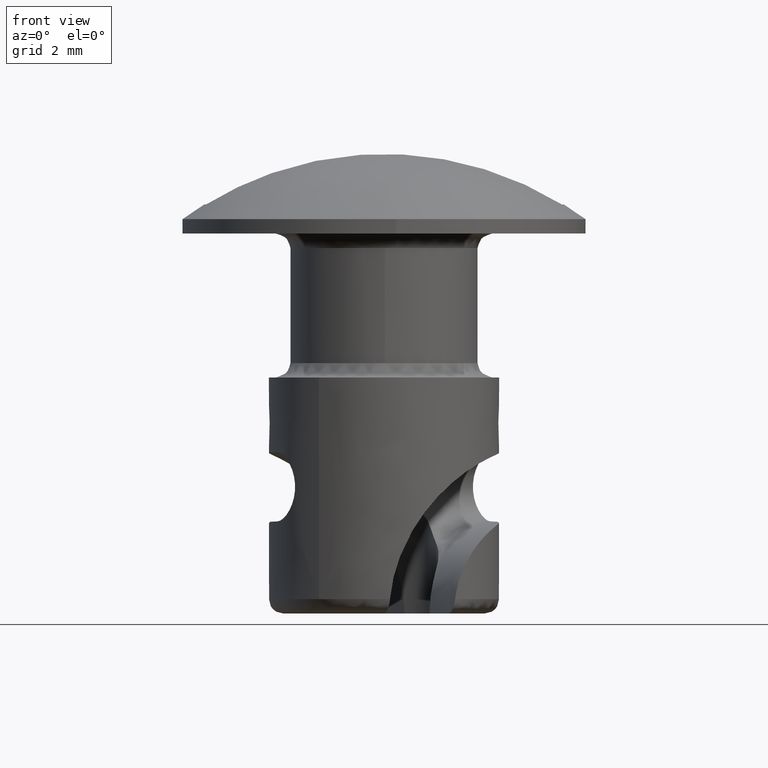
[diagram: clean part render]
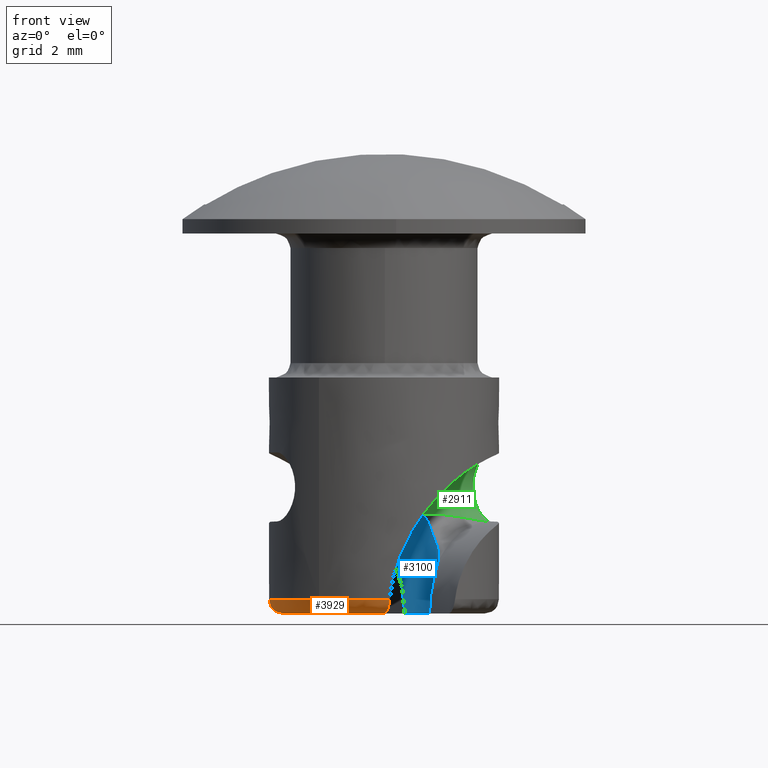
[diagram: same view with three faces highlighted in distinct colors, each labeled with its STEP entity id]
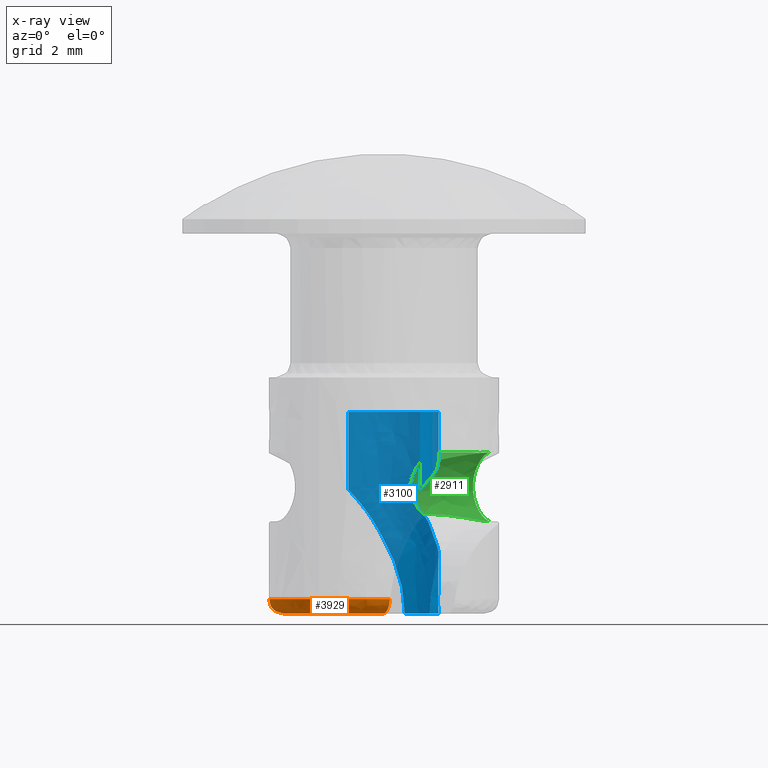
[diagram: x-ray of the same camera — body ghosted, the three highlighted faces saturated]
A machine part, front view with three faces highlighted in distinct colors.
The next image is the same camera in x-ray (body ghosted, the three faces saturated) — at least one of them is partly hidden behind the body in this view.
Their STEP definitions:

[orange] entity #3929 — the highlighted face is a freeform B-spline surface patch.
#3241=CARTESIAN_POINT('',(-2.259198863893974,-3.300912069925549,-12.699992000000160));
#3242=VERTEX_POINT('',#3241);
#3248=CARTESIAN_POINT('',(0.205768854712659,-3.994703891207740,-12.699992000000160));
#3249=VERTEX_POINT('',#3248);
#3250=CARTESIAN_POINT('',(-2.259198863893975,-3.300912069925549,-12.699992000000162));
#3251=CARTESIAN_POINT('',(-1.143920628626017,-4.064226956438076,-12.699992000000160));
#3252=CARTESIAN_POINT('',(0.205768854712658,-3.994703891207737,-12.699992000000160));
#3260=(BOUNDED_CURVE()B_SPLINE_CURVE(2,(#3250,#3251,#3252),.UNSPECIFIED.,.F.,.U.)B_SPLINE_CURVE_WITH_KNOTS((3,3),(0.742473773154059,1.0),.UNSPECIFIED.)CURVE()GEOMETRIC_REPRESENTATION_ITEM()RATIONAL_B_SPLINE_CURVE((0.903519857633981,0.900525177309878,1.0))REPRESENTATION_ITEM(''));
#3261=EDGE_CURVE('',#3242,#3249,#3260,.T.);
#3357=CARTESIAN_POINT('',(-2.468781606039290,3.147239644781135,-12.699992000000160));
#3358=VERTEX_POINT('',#3357);
#3402=CARTESIAN_POINT('',(-2.468781606039288,3.147239644781133,-12.699992000000160));
#3403=CARTESIAN_POINT('',(-4.772995447202776,1.339750737198706,-12.699992000000163));
#3404=CARTESIAN_POINT('',(-3.745950619800004,-1.402802179218427,-12.699992000000160));
#3405=CARTESIAN_POINT('',(-3.302552383284815,-2.586823649599729,-12.699992000000162));
#3406=CARTESIAN_POINT('',(-2.259198863893975,-3.300912069925549,-12.699992000000162));
#3414=(BOUNDED_CURVE()B_SPLINE_CURVE(2,(#3402,#3403,#3404,#3405,#3406),.UNSPECIFIED.,.F.,.U.)B_SPLINE_CURVE_WITH_KNOTS((3,2,3),(0.0,0.500000000000000,0.742473773154059),.UNSPECIFIED.)CURVE()GEOMETRIC_REPRESENTATION_ITEM()RATIONAL_B_SPLINE_CURVE((1.0,0.806864675671208,1.0,0.906339498361330,0.903519857633981))REPRESENTATION_ITEM(''));
#3415=EDGE_CURVE('',#3358,#3242,#3414,.T.);
#3789=CARTESIAN_POINT('',(-2.242511966324965,2.687217907221375,-13.199992000000099));
#3790=VERTEX_POINT('',#3789);
#3796=CARTESIAN_POINT('',(-2.468781606039290,3.147239644781135,-12.699992000000160));
#3797=CARTESIAN_POINT('',(-2.464572320773224,3.150541524273111,-12.733274123550190));
#3798=CARTESIAN_POINT('',(-2.459563125066523,3.150276408604843,-12.766187591314271));
#3799=CARTESIAN_POINT('',(-2.447905572098371,3.142738857981299,-12.831278994734751));
#3800=CARTESIAN_POINT('',(-2.441164767004548,3.135296757916409,-12.863783486413800));
#3801=CARTESIAN_POINT('',(-2.426427040251809,3.113930837520646,-12.925157461837310));
#3802=CARTESIAN_POINT('',(-2.418399638694785,3.100049556877732,-12.954308135837170));
#3803=CARTESIAN_POINT('',(-2.400786041455194,3.065982162877449,-13.009512428120059));
#3804=CARTESIAN_POINT('',(-2.391400104514494,3.046173255314444,-13.034889387884061));
#3805=CARTESIAN_POINT('',(-2.371574630902612,3.002094869464855,-13.080668314815309));
#3806=CARTESIAN_POINT('',(-2.360969432059829,2.977440976156993,-13.101381239037501));
#3807=CARTESIAN_POINT('',(-2.339057009752661,2.925254256444605,-13.136821845581650));
#3808=CARTESIAN_POINT('',(-2.327740431831670,2.897720641032076,-13.151663792608220));
#3809=CARTESIAN_POINT('',(-2.304196367126951,2.839942682373601,-13.175755940135289));
#3810=CARTESIAN_POINT('',(-2.292001899115876,2.809776261967374,-13.184892974169580));
#3811=CARTESIAN_POINT('',(-2.267516184016631,2.749146349777264,-13.196946027397439));
#3812=CARTESIAN_POINT('',(-2.255109725855921,2.718398469727004,-13.199992000000149));
#3813=CARTESIAN_POINT('',(-2.242511966324608,2.687217907221529,-13.199992000000160));
#3814=B_SPLINE_CURVE_WITH_KNOTS('',3,(#3796,#3797,#3798,#3799,#3800,#3801,#3802,#3803,#3804,#3805,#3806,#3807,#3808,#3809,#3810,#3811,#3812,#3813),.UNSPECIFIED.,.F.,.U.,(4,2,2,2,2,2,2,2,4),(0.0,0.125000000000000,0.250000000000000,0.375000000000000,0.500000000000000,0.625000000000000,0.750000000000000,0.875000000000000,1.0),.UNSPECIFIED.);
#3815=EDGE_CURVE('',#3358,#3790,#3814,.T.);
#3844=CARTESIAN_POINT('',(-0.017604006614064,-3.499955728141590,-13.199992000000099));
#3845=VERTEX_POINT('',#3844);
#3846=CARTESIAN_POINT('',(0.205768854712687,-3.994703891207736,-12.699992000000160));
#3847=CARTESIAN_POINT('',(0.202570867799463,-3.994868620840380,-12.734214420369421));
#3848=CARTESIAN_POINT('',(0.198393545772965,-3.991599343327962,-12.767742906660960));
#3849=CARTESIAN_POINT('',(0.188146193195389,-3.978574490013460,-12.833482946978870));
#3850=CARTESIAN_POINT('',(0.181987101593155,-3.968640287744275,-12.866043282467761));
#3851=CARTESIAN_POINT('',(0.168073989641811,-3.942908178400838,-12.927523380525150));
#3852=CARTESIAN_POINT('',(0.160334601070042,-3.927184040059275,-12.956536318944631));
#3853=CARTESIAN_POINT('',(0.147461496767844,-3.899415845364495,-12.997497215102010));
#3854=CARTESIAN_POINT('',(0.142933257884454,-3.889400476937639,-13.010782385685040));
#3855=CARTESIAN_POINT('',(0.133598651144906,-3.868340091526420,-13.035992227197690));
#3856=CARTESIAN_POINT('',(0.128782856804895,-3.857277266277472,-13.047958802780990));
#3857=CARTESIAN_POINT('',(0.113874842880179,-3.822554900096510,-13.082005095103829));
#3858=CARTESIAN_POINT('',(0.103303531045872,-3.797320421873493,-13.102282336880119));
#3859=CARTESIAN_POINT('',(0.080860798330045,-3.743011684126071,-13.137705294688450));
#3860=CARTESIAN_POINT('',(0.069289267673411,-3.714668037223074,-13.152391193458779));
#3861=CARTESIAN_POINT('',(0.045370677399293,-3.655796365253236,-13.176083282238160));
#3862=CARTESIAN_POINT('',(0.032901293881655,-3.624963587258385,-13.185131230430841));
#3863=CARTESIAN_POINT('',(0.007754761183584,-3.562736604437254,-13.197057158079890));
#3864=CARTESIAN_POINT('',(-0.004885637460380,-3.531434810067574,-13.199992000000240));
#3865=CARTESIAN_POINT('',(-0.017604006614226,-3.499955728141666,-13.199992000000240));
#3866=B_SPLINE_CURVE_WITH_KNOTS('',3,(#3846,#3847,#3848,#3849,#3850,#3851,#3852,#3853,#3854,#3855,#3856,#3857,#3858,#3859,#3860,#3861,#3862,#3863,#3864,#3865),.UNSPECIFIED.,.F.,.U.,(4,2,2,2,2,2,2,2,2,4),(0.0,0.124999999999999,0.249999999999997,0.374999999999995,0.437499999999995,0.499999999999994,0.624999999999995,0.749999999999997,0.874999999999998,1.0),.UNSPECIFIED.);
#3867=EDGE_CURVE('',#3249,#3845,#3866,.T.);
#3877=CARTESIAN_POINT('',(-1.787654974981890,2.968630140595364,-13.198788173820232));
#3878=CARTESIAN_POINT('',(-4.255079476371656,1.482792068353392,-13.198788173820233));
#3879=CARTESIAN_POINT('',(-3.245449447871267,-1.214715235164538,-13.198788173820239));
#3880=CARTESIAN_POINT('',(-2.238908710264100,-3.903968639222344,-13.198788173820235));
#3881=CARTESIAN_POINT('',(0.590536827128366,-3.414636360878552,-13.198788173820239));
#3882=CARTESIAN_POINT('',(-2.083529261829931,3.459967304677125,-13.238659866102074));
#3883=CARTESIAN_POINT('',(-4.959336518794486,1.728208578758281,-13.238659866102072));
#3884=CARTESIAN_POINT('',(-3.782602899923730,-1.415762422098023,-13.238659866102072));
#3885=CARTESIAN_POINT('',(-2.609469879638505,-4.550113422848018,-13.238659866102070));
#3886=CARTESIAN_POINT('',(0.688276416159454,-3.979791892711851,-13.238659866102076));
#3887=CARTESIAN_POINT('',(-2.062849871924862,3.425626528061695,-12.665129894639572));
#3888=CARTESIAN_POINT('',(-4.910114242236424,1.711055808364243,-12.665129894639584));
#3889=CARTESIAN_POINT('',(-3.745059908972467,-1.401710734091588,-12.665129894639582));
#3890=CARTESIAN_POINT('',(-2.583570437727530,-4.504952756613490,-12.665129894639582));
#3891=CARTESIAN_POINT('',(0.681445153151549,-3.940291766748586,-12.665129894639588));
#3899=(BOUNDED_SURFACE()B_SPLINE_SURFACE(2,2,((#3877,#3882,#3887),(#3878,#3883,#3888),(#3879,#3884,#3889),(#3880,#3885,#3890),(#3881,#3886,#3891)),.UNSPECIFIED.,.F.,.F.,.U.)B_SPLINE_SURFACE_WITH_KNOTS((3,2,3),(3,3),(0.0,5.779211875193943,11.544980126547729),(0.0,0.911185203767678),.UNSPECIFIED.)GEOMETRIC_REPRESENTATION_ITEM()RATIONAL_B_SPLINE_SURFACE(((0.896672613332314,0.586786817893471,0.891705799261927),(0.698072375441069,0.456821878748061,0.694205640085337),(0.918901012098444,0.601333187644155,0.913811071346020),(0.698586067824818,0.457158041484331,0.694716487044210),(0.895750913753511,0.586183653310480,0.890789205125589)))REPRESENTATION_ITEM('')SURFACE());
#3900=ORIENTED_EDGE('',*,*,#3261,.F.);
#3901=ORIENTED_EDGE('',*,*,#3415,.F.);
#3902=ORIENTED_EDGE('',*,*,#3815,.T.);
#3903=CARTESIAN_POINT('',(-0.017604006614064,-3.499955728141590,-13.199992000000099));
#3904=CARTESIAN_POINT('',(-0.178913117588467,-3.499152014091810,-13.199992000000121));
#3905=CARTESIAN_POINT('',(-0.473613505648174,-3.477243167516102,-13.199992000000080));
#3906=CARTESIAN_POINT('',(-0.899487754520686,-3.390687299042207,-13.199992000000170));
#3907=CARTESIAN_POINT('',(-1.375973692201717,-3.234225269786171,-13.199992000000110));
#3908=CARTESIAN_POINT('',(-1.848238909772020,-2.991562357882731,-13.199992000000289));
#3909=CARTESIAN_POINT('',(-2.272609191030276,-2.674547442589935,-13.199991999999940));
#3910=CARTESIAN_POINT('',(-2.596563652122130,-2.360253370815428,-13.199992000000551));
#3911=CARTESIAN_POINT('',(-2.889726462323719,-1.995173216680278,-13.199992000000030));
#3912=CARTESIAN_POINT('',(-3.174608717146924,-1.515529242652979,-13.199992000000311));
#3913=CARTESIAN_POINT('',(-3.378418700342132,-0.977145196271774,-13.199992000000160));
#3914=CARTESIAN_POINT('',(-3.485157798861656,-0.429783230212972,-13.199992000000210));
#3915=CARTESIAN_POINT('',(-3.512980136589142,0.104770700120767,-13.199992000000201));
#3916=CARTESIAN_POINT('',(-3.449576458452507,0.704519837792065,-13.199992000000179));
#3917=CARTESIAN_POINT('',(-3.282890106652137,1.255678343634452,-13.199992000000289));
#3918=CARTESIAN_POINT('',(-3.071565312153197,1.691921684577548,-13.199991999999961));
#3919=CARTESIAN_POINT('',(-2.862091953610124,2.027312342676228,-13.199992000001521));
#3920=CARTESIAN_POINT('',(-2.595490601400062,2.363584446783458,-13.199991999996710));
#3921=CARTESIAN_POINT('',(-2.370636645542784,2.580305548922044,-13.199992000005301));
#3922=CARTESIAN_POINT('',(-2.242511966324965,2.687217907221375,-13.199992000000099));
#3923=B_SPLINE_CURVE_WITH_KNOTS('',3,(#3903,#3904,#3905,#3906,#3907,#3908,#3909,#3910,#3911,#3912,#3913,#3914,#3915,#3916,#3917,#3918,#3919,#3920,#3921,#3922),.UNSPECIFIED.,.F.,.U.,(4,1,1,1,1,1,1,1,1,1,1,1,1,1,1,1,1,4),(0.000000019222266,0.483932841108919,0.884427038703802,1.301615805167814,1.985803696796976,2.469739860755069,2.886928251809494,3.337490295953399,3.871489149374721,4.555660668383432,5.056286265835503,5.540223648594800,6.157660975781184,6.858536151160585,7.259034435060539,7.609472553309746,8.043349244696652,8.543963902825499),.UNSPECIFIED.);
#3924=EDGE_CURVE('',#3845,#3790,#3923,.T.);
#3925=ORIENTED_EDGE('',*,*,#3924,.F.);
#3926=ORIENTED_EDGE('',*,*,#3867,.F.);
#3927=EDGE_LOOP('',(#3900,#3901,#3902,#3925,#3926));
#3928=FACE_OUTER_BOUND('',#3927,.T.);
#3929=ADVANCED_FACE('',(#3928),#3899,.T.);

[blue] entity #3100 — the highlighted face is a freeform B-spline surface patch.
#969=CARTESIAN_POINT('',(1.581969614668675,-1.052317508295498,-13.199992000000099));
#970=VERTEX_POINT('',#969);
#971=CARTESIAN_POINT('',(0.721534682210653,1.757665412519450,-13.199992000000099));
#972=VERTEX_POINT('',#971);
#973=CARTESIAN_POINT('',(1.581969614668675,-1.052317508295498,-13.199992000000099));
#974=CARTESIAN_POINT('',(1.649821487017520,-0.950340257211823,-13.199992000000121));
#975=CARTESIAN_POINT('',(1.736720389148278,-0.787484526766799,-13.199992000000091));
#976=CARTESIAN_POINT('',(1.833059382185117,-0.519599167208110,-13.199992000000091));
#977=CARTESIAN_POINT('',(1.883237041559169,-0.292491522237659,-13.199992000000160));
#978=CARTESIAN_POINT('',(1.904602887322167,-0.034878904664627,-13.199991999999961));
#979=CARTESIAN_POINT('',(1.895489160062544,0.184183799772227,-13.199992000000391));
#980=CARTESIAN_POINT('',(1.856656973327136,0.426351362154605,-13.199992000000041));
#981=CARTESIAN_POINT('',(1.779402381627026,0.691728355395661,-13.199992000000281));
#982=CARTESIAN_POINT('',(1.650682556490641,0.956462725797221,-13.199992000000030));
#983=CARTESIAN_POINT('',(1.475426748592669,1.208299081310732,-13.199991999999840));
#984=CARTESIAN_POINT('',(1.291590155930281,1.403094404216269,-13.199992000000380));
#985=CARTESIAN_POINT('',(1.036517514935681,1.603441929533996,-13.199991999999920));
#986=CARTESIAN_POINT('',(0.846997086253565,1.706186883979090,-13.199992000000289));
#987=CARTESIAN_POINT('',(0.721534682210653,1.757665412519450,-13.199992000000099));
#988=B_SPLINE_CURVE_WITH_KNOTS('',3,(#973,#974,#975,#976,#977,#978,#979,#980,#981,#982,#983,#984,#985,#986,#987),.UNSPECIFIED.,.F.,.U.,(4,1,1,1,1,1,1,1,1,1,1,1,4),(0.000000015421960,0.367460081629099,0.551196109395039,0.853043133707279,1.063025020080209,1.325501699289623,1.509236120133757,1.797949140847621,2.152290925311263,2.388520108167433,2.716615470771077,2.952845246573053,3.359676945685905),.UNSPECIFIED.);
#989=EDGE_CURVE('',#970,#972,#988,.T.);
#1188=CARTESIAN_POINT('',(-0.041622970775813,1.899544031683340,-10.566299029696300));
#1189=VERTEX_POINT('',#1188);
#1219=CARTESIAN_POINT('',(-1.243232143664261,1.436828654410550,-8.889222069359681));
#1220=VERTEX_POINT('',#1219);
#1221=CARTESIAN_POINT('',(-1.243232143664261,1.436828654410550,-8.889222069359681));
#1222=CARTESIAN_POINT('',(-1.220302309335358,1.456615922262639,-8.913999902160473));
#1223=CARTESIAN_POINT('',(-1.157578860147537,1.508270977338468,-8.982429918408119));
#1224=CARTESIAN_POINT('',(-1.022330653960302,1.605926719664628,-9.131531823037186));
#1225=CARTESIAN_POINT('',(-0.818661554658760,1.721626721108192,-9.364524347904663));
#1226=CARTESIAN_POINT('',(-0.653583255729922,1.786336803246604,-9.574185267280782));
#1227=CARTESIAN_POINT('',(-0.516227213071408,1.829315322870221,-9.766701908673825));
#1228=CARTESIAN_POINT('',(-0.460649452398973,1.844096098378146,-9.849351244469471));
#1229=CARTESIAN_POINT('',(-0.410071782682771,1.855371314884293,-9.929006918932762));
#1230=CARTESIAN_POINT('',(-0.401224346707899,1.857254255614388,-9.943127798757612));
#1231=CARTESIAN_POINT('',(-0.389384014804396,1.859824149858307,-9.961919996842756));
#1232=CARTESIAN_POINT('',(-0.357186746597158,1.866401031663069,-10.013890983177671));
#1233=CARTESIAN_POINT('',(-0.322827555675098,1.872554971579964,-10.071181188741120));
#1234=CARTESIAN_POINT('',(-0.272366637800077,1.880553742606249,-10.157863819252320));
#1235=CARTESIAN_POINT('',(-0.183796699962217,1.892529585298427,-10.312827592876740));
#1236=CARTESIAN_POINT('',(-0.102429527085996,1.898136271301483,-10.459415384826160));
#1237=CARTESIAN_POINT('',(-0.041622970775813,1.899544031683340,-10.566299029696300));
#1238=B_SPLINE_CURVE_WITH_KNOTS('',3,(#1221,#1222,#1223,#1224,#1225,#1226,#1227,#1228,#1229,#1230,#1231,#1232,#1233,#1234,#1235,#1236,#1237),.UNSPECIFIED.,.F.,.U.,(4,1,1,1,1,1,1,1,1,1,1,1,1,1,4),(0.000002171706131,0.117394088925922,0.318630204633076,0.670795114102035,1.106806495608427,1.140352888952157,1.391897581498733,1.408666901236069,1.425436599582296,1.442206297928520,1.475745321496111,1.609899315664720,1.643441117069296,1.777601563671880,2.146537870647717),.UNSPECIFIED.);
#1239=EDGE_CURVE('',#1220,#1189,#1238,.T.);
#1431=CARTESIAN_POINT('',(1.880153510973110,-0.273902857187526,-11.368191261108080));
#1432=VERTEX_POINT('',#1431);
#1452=CARTESIAN_POINT('',(1.644551993322515,0.951548828387879,-10.300820635221060));
#1453=VERTEX_POINT('',#1452);
#1474=CARTESIAN_POINT('',(1.880153510973110,-0.273902857187526,-11.368191261108080));
#1475=CARTESIAN_POINT('',(1.888275491328264,-0.218161016340704,-11.327104216464861));
#1476=CARTESIAN_POINT('',(1.901858087535319,-0.083547624572705,-11.231425826189369));
#1477=CARTESIAN_POINT('',(1.900228420577379,0.147491132232721,-11.074574192030850));
#1478=CARTESIAN_POINT('',(1.874371224330313,0.325530635638813,-10.950940229147429));
#1479=CARTESIAN_POINT('',(1.846339444129771,0.449498002891596,-10.858970085542740));
#1480=CARTESIAN_POINT('',(1.835864108843190,0.490186815494689,-10.827812564034760));
#1481=CARTESIAN_POINT('',(1.825394138791549,0.526730697413815,-10.798614425172669));
#1482=CARTESIAN_POINT('',(1.821437679275448,0.539870724541558,-10.787868661159131));
#1483=CARTESIAN_POINT('',(1.818505916308642,0.549765398277564,-10.779840985587310));
#1484=CARTESIAN_POINT('',(1.797396146222874,0.618357707011873,-10.723105345406040));
#1485=CARTESIAN_POINT('',(1.755988529911351,0.730176566630629,-10.620619650495209));
#1486=CARTESIAN_POINT('',(1.695217158816990,0.860390887188224,-10.461972853994970));
#1487=CARTESIAN_POINT('',(1.659884475515199,0.925067414285360,-10.353601248712740));
#1488=CARTESIAN_POINT('',(1.644551993322515,0.951548828387879,-10.300820635221060));
#1489=B_SPLINE_CURVE_WITH_KNOTS('',3,(#1474,#1475,#1476,#1477,#1478,#1479,#1480,#1481,#1482,#1483,#1484,#1485,#1486,#1487,#1488),.UNSPECIFIED.,.F.,.U.,(4,1,1,1,1,1,1,1,1,1,1,1,4),(-0.000002688396127,0.209166340722556,0.496760280912023,0.836644791219631,0.862810010231854,0.967390627394452,0.993534625315831,1.006606835661043,1.019679046006255,1.032750840539499,1.281128758611554,1.490291219146094,1.673311808194010),.UNSPECIFIED.);
#1490=EDGE_CURVE('',#1432,#1453,#1489,.T.);
#1719=CARTESIAN_POINT('',(1.337555540859292,1.349424016061876,-9.736663782010471));
#1720=VERTEX_POINT('',#1719);
#1721=CARTESIAN_POINT('',(1.644551993322515,0.951548828387879,-10.300820635221060));
#1722=CARTESIAN_POINT('',(1.623676626864627,0.987549674998427,-10.229304855974110));
#1723=CARTESIAN_POINT('',(1.574094456477796,1.067215672989429,-10.089273930300291));
#1724=CARTESIAN_POINT('',(1.475572835843046,1.203409252643479,-9.897146002075481));
#1725=CARTESIAN_POINT('',(1.383590640471163,1.300721393832098,-9.790191964746530));
#1726=CARTESIAN_POINT('',(1.337555540859292,1.349424016061876,-9.736663782010471));
#1727=B_SPLINE_CURVE_WITH_KNOTS('',3,(#1721,#1722,#1723,#1724,#1725,#1726),.UNSPECIFIED.,.F.,.U.,(4,1,1,4),(0.508240037875266,0.668572443504824,0.834127675299670,1.0),.UNSPECIFIED.);
#1728=EDGE_CURVE('',#1453,#1720,#1727,.T.);
#1770=CARTESIAN_POINT('',(0.721534682210653,1.757665412519450,-13.199992000000099));
#1771=CARTESIAN_POINT('',(0.721893078104262,1.757518288348255,-12.965842787339909));
#1772=CARTESIAN_POINT('',(0.703208962487021,1.765489430723738,-12.735152465420180));
#1773=CARTESIAN_POINT('',(0.631763697135257,1.792297521591014,-12.279764361704590));
#1774=CARTESIAN_POINT('',(0.579070358472820,1.810971929699325,-12.055047065619631));
#1775=CARTESIAN_POINT('',(0.477514230202834,1.839351954496197,-11.721563814118729));
#1776=CARTESIAN_POINT('',(0.440060506308491,1.848799836685293,-11.611568579517700));
#1777=CARTESIAN_POINT('',(0.359109351089647,1.866213963965553,-11.395070518409961));
#1778=CARTESIAN_POINT('',(0.315540545807093,1.874201365426794,-11.288332696225490));
#1779=CARTESIAN_POINT('',(0.176354874722204,1.894118616936462,-10.972221033753900));
#1780=CARTESIAN_POINT('',(0.072309615124799,1.902040532219394,-10.766924644487711));
#1781=CARTESIAN_POINT('',(-0.041622970775834,1.899544031683339,-10.566299029696349));
#1782=B_SPLINE_CURVE_WITH_KNOTS('',3,(#1770,#1771,#1772,#1773,#1774,#1775,#1776,#1777,#1778,#1779,#1780,#1781),.UNSPECIFIED.,.F.,.U.,(4,2,2,2,2,4),(0.0,0.250000000000000,0.500000000000000,0.625000000000000,0.750000000000000,1.0),.UNSPECIFIED.);
#1783=EDGE_CURVE('',#972,#1189,#1782,.T.);
#2180=CARTESIAN_POINT('',(1.581969614668675,-1.052317508295498,-13.199992000000099));
#2181=CARTESIAN_POINT('',(1.581541494893709,-1.052961109176487,-13.024284104693180));
#2182=CARTESIAN_POINT('',(1.590871754706836,-1.039349024441612,-12.851777405140410));
#2183=CARTESIAN_POINT('',(1.617575882351367,-0.996859116659941,-12.597744450303880));
#2184=CARTESIAN_POINT('',(1.628589111568765,-0.978954749811395,-12.513863986403690));
#2185=CARTESIAN_POINT('',(1.647920629736979,-0.945791373513118,-12.389315714368809));
#2186=CARTESIAN_POINT('',(1.654831971246443,-0.933681271810882,-12.348012305365019));
#2187=CARTESIAN_POINT('',(1.669511879085200,-0.907171238511878,-12.265851839527560));
#2188=CARTESIAN_POINT('',(1.677300814017527,-0.892729911218594,-12.224906293725621));
#2189=CARTESIAN_POINT('',(1.717598924446173,-0.815309374504596,-12.023984381038940));
#2190=CARTESIAN_POINT('',(1.754699236423869,-0.736519562836828,-11.873442960477700));
#2191=CARTESIAN_POINT('',(1.799417823110245,-0.610581610163464,-11.699657176556849));
#2192=CARTESIAN_POINT('',(1.808289815705217,-0.583894057302618,-11.665518619618931));
#2193=CARTESIAN_POINT('',(1.825299334353555,-0.528324396318213,-11.599753747349091));
#2194=CARTESIAN_POINT('',(1.833461095422938,-0.499386461394715,-11.568031848254400));
#2195=CARTESIAN_POINT('',(1.856494997979872,-0.409013480818551,-11.476355801615160));
#2196=CARTESIAN_POINT('',(1.869936403125859,-0.344036229976079,-11.419877897251560));
#2197=CARTESIAN_POINT('',(1.880153510973110,-0.273902857187526,-11.368191261108080));
#2198=B_SPLINE_CURVE_WITH_KNOTS('',3,(#2180,#2181,#2182,#2183,#2184,#2185,#2186,#2187,#2188,#2189,#2190,#2191,#2192,#2193,#2194,#2195,#2196,#2197),.UNSPECIFIED.,.F.,.U.,(4,2,2,2,2,2,2,2,4),(0.0,0.250000000000000,0.375000000000001,0.437500000000001,0.500000000000002,0.750000000000004,0.812500000000003,0.875000000000003,1.0),.UNSPECIFIED.);
#2199=EDGE_CURVE('',#970,#1432,#2198,.T.);
#2807=CARTESIAN_POINT('',(1.898898489012795,-0.064687931060836,-7.880723263633869));
#2808=VERTEX_POINT('',#2807);
#2858=CARTESIAN_POINT('',(1.898898489012795,-0.064687931060836,-7.880723263633869));
#2859=CARTESIAN_POINT('',(1.900004434566846,-0.032223168208356,-7.855814857792319));
#2860=CARTESIAN_POINT('',(1.900307525130212,0.001420064449195,-7.832209167235503));
#2861=CARTESIAN_POINT('',(1.899024273410543,0.069839212817061,-7.788383787700798));
#2862=CARTESIAN_POINT('',(1.897445710660937,0.104774071133012,-7.768038505826906));
#2863=CARTESIAN_POINT('',(1.889519916180226,0.211721066283880,-7.711702487952000));
#2864=CARTESIAN_POINT('',(1.880004050891795,0.285932662725563,-7.680316131452150));
#2865=CARTESIAN_POINT('',(1.849979044707093,0.440170709073584,-7.631505610466269));
#2866=CARTESIAN_POINT('',(1.830081540346517,0.516978677039264,-7.615103575248327));
#2867=CARTESIAN_POINT('',(1.792414891669961,0.631557760877167,-7.602397475486140));
#2868=CARTESIAN_POINT('',(1.778552246321431,0.669646414939584,-7.600160081321352));
#2869=CARTESIAN_POINT('',(1.748072645336852,0.745598042219239,-7.599856437709001));
#2870=CARTESIAN_POINT('',(1.731449398335777,0.783408034617138,-7.601830724837326));
#2871=CARTESIAN_POINT('',(1.678934211015392,0.893174443149749,-7.613855046412732));
#2872=CARTESIAN_POINT('',(1.639964300695713,0.962643626484022,-7.629904687576739));
#2873=CARTESIAN_POINT('',(1.576196701362401,1.061671028804812,-7.665775718559410));
#2874=CARTESIAN_POINT('',(1.554199597577966,1.093565598170043,-7.679647057802229));
#2875=CARTESIAN_POINT('',(1.509582912549231,1.154374955009347,-7.710626758006742));
#2876=CARTESIAN_POINT('',(1.486863992993069,1.183444544136801,-7.727789859512523));
#2877=CARTESIAN_POINT('',(1.417759685271590,1.266956812859566,-7.784157778267172));
#2878=CARTESIAN_POINT('',(1.370054835867638,1.318009212875630,-7.828637714752493));
#2879=CARTESIAN_POINT('',(1.277079405756306,1.408285031485548,-7.927381280004230));
#2880=CARTESIAN_POINT('',(1.231465652324459,1.447972250348972,-7.981824717035404));
#2881=CARTESIAN_POINT('',(1.165952699161776,1.500445642462858,-8.071589858700984));
#2882=CARTESIAN_POINT('',(1.144656797466388,1.516703877306248,-8.102833781568483));
#2883=CARTESIAN_POINT('',(1.104197080727084,1.546408303889387,-8.166955040563995));
#2884=CARTESIAN_POINT('',(1.084926519820730,1.559940644052517,-8.199973098926320));
#2885=CARTESIAN_POINT('',(1.030517038918047,1.596858195947257,-8.302070112980717));
#2886=CARTESIAN_POINT('',(0.998658256544104,1.616645361553468,-8.374279232648574));
#2887=CARTESIAN_POINT('',(0.948273958760659,1.646704902991735,-8.528166796720411));
#2888=CARTESIAN_POINT('',(0.930725992368718,1.656455381522674,-8.607059741355874));
#2889=CARTESIAN_POINT('',(0.917922953154685,1.663562826603600,-8.728655649138480));
#2890=CARTESIAN_POINT('',(0.915931761818000,1.664652889602962,-8.770050240261226));
#2891=CARTESIAN_POINT('',(0.916781335434117,1.664185151409286,-8.851976497690895));
#2892=CARTESIAN_POINT('',(0.922362689175799,1.661124632240418,-8.933155717420760));
#2893=CARTESIAN_POINT('',(0.936891421984984,1.652982582317226,-9.012910151238549));
#2894=CARTESIAN_POINT('',(0.955647188106692,1.642210524231475,-9.091975818611791));
#2895=CARTESIAN_POINT('',(0.967161122951699,1.635492040393048,-9.131128830040163));
#2896=CARTESIAN_POINT('',(1.006544092208594,1.611771819487000,-9.244828638970688));
#2897=CARTESIAN_POINT('',(1.039464609995571,1.591102909431730,-9.316770448007626));
#2898=CARTESIAN_POINT('',(1.114876544025198,1.539202857135218,-9.453509132139269));
#2899=CARTESIAN_POINT('',(1.156419260311849,1.508610169986961,-9.516660983504890));
#2900=CARTESIAN_POINT('',(1.222298539486650,1.454918835548117,-9.604625988691240));
#2901=CARTESIAN_POINT('',(1.244865591600100,1.435711543245992,-9.632806043189770));
#2902=CARTESIAN_POINT('',(1.290968442290883,1.394402545022413,-9.686903543954015));
#2903=CARTESIAN_POINT('',(1.314278454866608,1.372496375064674,-9.712549172863614));
#2904=CARTESIAN_POINT('',(1.337555540859292,1.349424016061876,-9.736663782010471));
#2905=B_SPLINE_CURVE_WITH_KNOTS('',3,(#2858,#2859,#2860,#2861,#2862,#2863,#2864,#2865,#2866,#2867,#2868,#2869,#2870,#2871,#2872,#2873,#2874,#2875,#2876,#2877,#2878,#2879,#2880,#2881,#2882,#2883,#2884,#2885,#2886,#2887,#2888,#2889,#2890,#2891,#2892,#2893,#2894,#2895,#2896,#2897,#2898,#2899,#2900,#2901,#2902,#2903,#2904),.UNSPECIFIED.,.F.,.U.,(4,2,2,2,2,2,2,2,2,2,2,2,2,2,2,2,2,1,2,2,2,2,2,4),(0.0,0.031250000000000,0.062500000000001,0.125000000000002,0.187500000000002,0.218750000000003,0.250000000000003,0.312500000000004,0.343750000000004,0.375000000000005,0.437500000000005,0.500000000000005,0.531250000000005,0.562500000000005,0.625000000000004,0.687500000000003,0.718750000000003,0.750000000000003,0.781250000000002,0.812500000000002,0.875000000000001,0.937500000000001,0.968750000000000,1.0),.UNSPECIFIED.);
#2906=EDGE_CURVE('',#2808,#1720,#2905,.T.);
#2976=CARTESIAN_POINT('',(-1.243214053714081,1.436808552538400,-6.199991999846281));
#2977=VERTEX_POINT('',#2976);
#2993=CARTESIAN_POINT('',(1.900000000000000,0.0,-6.199992000000099));
#2994=VERTEX_POINT('',#2993);
#2995=CARTESIAN_POINT('',(1.900000000000000,0.0,-6.199992000000099));
#2996=CARTESIAN_POINT('',(1.900000000000012,1.899999999999986,-6.199991999964944));
#2997=CARTESIAN_POINT('',(3.882533E-014,1.899999999999954,-6.199991999888034));
#2998=CARTESIAN_POINT('',(-0.707893984585879,1.899999999999942,-6.199991999859379));
#2999=CARTESIAN_POINT('',(-1.243214053714081,1.436808552538399,-6.199991999846281));
#3007=(BOUNDED_CURVE()B_SPLINE_CURVE(2,(#2995,#2996,#2997,#2998,#2999),.UNSPECIFIED.,.F.,.U.)B_SPLINE_CURVE_WITH_KNOTS((3,2,3),(0.500000000000000,0.750000000000000,0.864114589302798),.UNSPECIFIED.)CURVE()GEOMETRIC_REPRESENTATION_ITEM()RATIONAL_B_SPLINE_CURVE((1.0,0.707106781186547,1.0,0.866306442502113,0.854663968254637))REPRESENTATION_ITEM(''));
#3008=EDGE_CURVE('',#2994,#2977,#3007,.T.);
#3010=CARTESIAN_POINT('',(1.243214053713756,-1.436808552538681,-6.199991999846350));
#3011=VERTEX_POINT('',#3010);
#3012=CARTESIAN_POINT('',(1.243214053713756,-1.436808552538681,-6.199991999846350));
#3013=CARTESIAN_POINT('',(1.899999999999974,-0.868517448437215,-6.199991999923226));
#3014=CARTESIAN_POINT('',(1.900000000000000,0.0,-6.199992000000099));
#3022=(BOUNDED_CURVE()B_SPLINE_CURVE(2,(#3012,#3013,#3014),.UNSPECIFIED.,.F.,.U.)B_SPLINE_CURVE_WITH_KNOTS((3,3),(0.364114589302764,0.500000000000000),.UNSPECIFIED.)CURVE()GEOMETRIC_REPRESENTATION_ITEM()RATIONAL_B_SPLINE_CURVE((0.854663968254644,0.840800338684394,1.0))REPRESENTATION_ITEM(''));
#3023=EDGE_CURVE('',#3011,#2994,#3022,.T.);
#3043=CARTESIAN_POINT('',(-1.243214474709803,1.436808188267322,-6.024992000000099));
#3044=CARTESIAN_POINT('',(0.193593713557519,2.680022662977126,-6.024992000000099));
#3045=CARTESIAN_POINT('',(1.436808188267322,1.243214474709803,-6.024992000000099));
#3046=CARTESIAN_POINT('',(2.680022662977126,-0.193593713557519,-6.024992000000099));
#3047=CARTESIAN_POINT('',(1.243214474709803,-1.436808188267322,-6.024992000000099));
#3048=CARTESIAN_POINT('',(-1.243214474709803,1.436808188267322,-13.379367000000100));
#3049=CARTESIAN_POINT('',(0.193593713557519,2.680022662977126,-13.379367000000101));
#3050=CARTESIAN_POINT('',(1.436808188267322,1.243214474709803,-13.379367000000100));
#3051=CARTESIAN_POINT('',(2.680022662977126,-0.193593713557519,-13.379367000000101));
#3052=CARTESIAN_POINT('',(1.243214474709803,-1.436808188267322,-13.379367000000100));
#3060=(BOUNDED_SURFACE()B_SPLINE_SURFACE(2,1,((#3043,#3048),(#3044,#3049),(#3045,#3050),(#3046,#3051),(#3047,#3052)),.UNSPECIFIED.,.F.,.F.,.U.)B_SPLINE_SURFACE_WITH_KNOTS((3,2,3),(2,2),(0.0,3.148023074035521,6.296046148071042),(0.0,7.354375000000005),.UNSPECIFIED.)GEOMETRIC_REPRESENTATION_ITEM()RATIONAL_B_SPLINE_SURFACE(((1.0,1.0),(0.707106781186548,0.707106781186548),(1.0,1.0),(0.707106781186548,0.707106781186548),(1.0,1.0)))REPRESENTATION_ITEM('')SURFACE());
#3061=ORIENTED_EDGE('',*,*,#3008,.T.);
#3062=CARTESIAN_POINT('',(-1.243214053714081,1.436808552538400,-6.199991999846281));
#3063=CARTESIAN_POINT('',(-1.243232143664261,1.436828654410550,-8.889222069359681));
#3064=QUASI_UNIFORM_CURVE('',1,(#3062,#3063),.UNSPECIFIED.,.F.,.U.);
#3065=EDGE_CURVE('',#2977,#1220,#3064,.T.);
#3066=ORIENTED_EDGE('',*,*,#3065,.T.);
#3067=ORIENTED_EDGE('',*,*,#1239,.T.);
#3068=ORIENTED_EDGE('',*,*,#1783,.F.);
#3069=ORIENTED_EDGE('',*,*,#989,.F.);
#3070=ORIENTED_EDGE('',*,*,#2199,.T.);
#3071=ORIENTED_EDGE('',*,*,#1490,.T.);
#3072=ORIENTED_EDGE('',*,*,#1728,.T.);
#3073=ORIENTED_EDGE('',*,*,#2906,.F.);
#3074=CARTESIAN_POINT('',(1.243232136388995,-1.436828645978158,-8.889222016366078));
#3075=VERTEX_POINT('',#3074);
#3076=CARTESIAN_POINT('',(1.898898489012795,-0.064687931060836,-7.880723263633869));
#3077=CARTESIAN_POINT('',(1.896781075117258,-0.126379884460421,-7.927875573875952));
#3078=CARTESIAN_POINT('',(1.885651361630744,-0.258767737182993,-8.017789971662680));
#3079=CARTESIAN_POINT('',(1.858338422400811,-0.402878450928916,-8.103950346586554));
#3080=CARTESIAN_POINT('',(1.822601971698980,-0.540993605163849,-8.186889192063967));
#3081=CARTESIAN_POINT('',(1.778839829501835,-0.677822205894559,-8.268414130735360));
#3082=CARTESIAN_POINT('',(1.722453867237139,-0.805300511794258,-8.347697422815481));
#3083=CARTESIAN_POINT('',(1.655334977994679,-0.935519552615243,-8.433697998683359));
#3084=CARTESIAN_POINT('',(1.591937976392539,-1.042683511212984,-8.509541009381834));
#3085=CARTESIAN_POINT('',(1.482176953411996,-1.193752923442100,-8.632183782663061));
#3086=CARTESIAN_POINT('',(1.369592394278098,-1.321448019113495,-8.753355272862633));
#3087=CARTESIAN_POINT('',(1.283023405932869,-1.402478821578620,-8.846164814632504));
#3088=CARTESIAN_POINT('',(1.243232136388995,-1.436828645978158,-8.889222016366078));
#3089=B_SPLINE_CURVE_WITH_KNOTS('',3,(#3076,#3077,#3078,#3079,#3080,#3081,#3082,#3083,#3084,#3085,#3086,#3087,#3088),.UNSPECIFIED.,.F.,.U.,(4,1,1,1,1,1,1,1,1,1,4),(0.000001109964875,0.232971297820711,0.480503138270427,0.509627203967038,0.728033654942102,0.975560295557298,0.990128081009495,1.237660731688236,1.412384471713706,1.659911798426411,1.863764524277181),.UNSPECIFIED.);
#3090=EDGE_CURVE('',#2808,#3075,#3089,.T.);
#3091=ORIENTED_EDGE('',*,*,#3090,.T.);
#3092=CARTESIAN_POINT('',(1.243214053713756,-1.436808552538681,-6.199991999846350));
#3093=CARTESIAN_POINT('',(1.243232136388995,-1.436828645978158,-8.889222016366078));
#3094=QUASI_UNIFORM_CURVE('',1,(#3092,#3093),.UNSPECIFIED.,.F.,.U.);
#3095=EDGE_CURVE('',#3011,#3075,#3094,.T.);
#3096=ORIENTED_EDGE('',*,*,#3095,.F.);
#3097=ORIENTED_EDGE('',*,*,#3023,.T.);
#3098=EDGE_LOOP('',(#3061,#3066,#3067,#3068,#3069,#3070,#3071,#3072,#3073,#3091,#3096,#3097));
#3099=FACE_OUTER_BOUND('',#3098,.T.);
#3100=ADVANCED_FACE('',(#3099),#3060,.F.);

[green] entity #2911 — the highlighted face is a freeform B-spline surface patch.
#1429=CARTESIAN_POINT('',(3.708735643719140,1.498425815652672,-10.000000000003000));
#1430=VERTEX_POINT('',#1429);
#1719=CARTESIAN_POINT('',(1.337555540859292,1.349424016061876,-9.736663782010471));
#1720=VERTEX_POINT('',#1719);
#1731=CARTESIAN_POINT('',(1.337555540859292,1.349424016061876,-9.736663782010471));
#1732=CARTESIAN_POINT('',(1.449597042497892,1.393324779178017,-9.737689218888805));
#1733=CARTESIAN_POINT('',(1.665490467062278,1.477917381738629,-9.739665164165110));
#1734=CARTESIAN_POINT('',(1.984017822348249,1.581253065095667,-9.758089502944392));
#1735=CARTESIAN_POINT('',(2.283167603428156,1.659606613718392,-9.786911023194707));
#1736=CARTESIAN_POINT('',(2.563976296433446,1.710630223719813,-9.825059402963250));
#1737=CARTESIAN_POINT('',(2.827014889093928,1.732813627920646,-9.869258289815859));
#1738=CARTESIAN_POINT('',(3.073173217661330,1.724505467477617,-9.915640163770718));
#1739=CARTESIAN_POINT('',(3.302442470422788,1.683284715577925,-9.957967688000545));
#1740=CARTESIAN_POINT('',(3.516709824951203,1.611080711908377,-9.992009857329702));
#1741=CARTESIAN_POINT('',(3.645171140465710,1.535716907889672,-9.997355098118394));
#1742=CARTESIAN_POINT('',(3.708735643719140,1.498425815652672,-10.000000000003000));
#1743=B_SPLINE_CURVE_WITH_KNOTS('',3,(#1731,#1732,#1733,#1734,#1735,#1736,#1737,#1738,#1739,#1740,#1741,#1742),.UNSPECIFIED.,.F.,.U.,(4,1,1,1,1,1,1,1,1,4),(0.000000650405745,0.145114191253793,0.279620767128840,0.404129574238514,0.519408922913596,0.626425581862014,0.726385615857121,0.820765036968097,0.911311966990690,1.0),.UNSPECIFIED.);
#1744=EDGE_CURVE('',#1720,#1430,#1743,.T.);
#2537=CARTESIAN_POINT('',(3.771185196416251,1.512413093583539,-10.001243481392120));
#2538=CARTESIAN_POINT('',(3.702860844088226,1.484756840286788,-9.999148719092650));
#2539=CARTESIAN_POINT('',(3.566230994782955,1.429397665042239,-9.997025315074801));
#2540=CARTESIAN_POINT('',(3.361158906195682,1.346674017077318,-9.999278679053148));
#2541=CARTESIAN_POINT('',(3.019449553748745,1.208609545541904,-9.999313347089400));
#2542=CARTESIAN_POINT('',(2.541045691506984,1.015345939158898,-9.999658457114341));
#2543=CARTESIAN_POINT('',(1.925962038265357,0.766846767616622,-9.999796775783221));
#2544=CARTESIAN_POINT('',(1.515906009183562,0.601181297406746,-9.999880325586995));
#2545=CARTESIAN_POINT('',(1.310878063445027,0.518348392009911,-9.999909660733946));
#2546=CARTESIAN_POINT('',(3.765078389172186,1.527527978457236,-10.001658469752240));
#2547=CARTESIAN_POINT('',(3.696748386557447,1.499885710116903,-9.998747145713381));
#2548=CARTESIAN_POINT('',(3.560137981044544,1.444478409776641,-9.997083580147734));
#2549=CARTESIAN_POINT('',(3.355051102665851,1.361791367845887,-9.999469919811496));
#2550=CARTESIAN_POINT('',(3.013345255136932,1.223718221330203,-9.999467878301008));
#2551=CARTESIAN_POINT('',(2.534940363349335,1.030457163163668,-9.999810478795585));
#2552=CARTESIAN_POINT('',(1.919857278307062,0.781956585278029,-9.999942082435036));
#2553=CARTESIAN_POINT('',(1.509801174085690,0.616291301045214,-10.000025079443720));
#2554=CARTESIAN_POINT('',(1.304773265247657,0.533458304316391,-10.000053801975019));
#2555=CARTESIAN_POINT('',(3.752876004575215,1.557729953236623,-10.001353533728510));
#2556=CARTESIAN_POINT('',(3.684566201725177,1.530037688702578,-9.999174282756639));
#2557=CARTESIAN_POINT('',(3.547956854533130,1.474627768925136,-9.995815307506486));
#2558=CARTESIAN_POINT('',(3.342849063582959,1.391992487447543,-9.999428486652521));
#2559=CARTESIAN_POINT('',(3.001149552606042,1.253903657408511,-9.999034982216310));
#2560=CARTESIAN_POINT('',(2.522743044939420,1.060646598684638,-9.999481352619227));
#2561=CARTESIAN_POINT('',(1.907660970377874,0.812143519770354,-9.999559073814606));
#2562=CARTESIAN_POINT('',(1.497604759076753,0.646478500569331,-9.999652296914702));
#2563=CARTESIAN_POINT('',(1.292576918318656,0.563645335336681,-9.999677867644309));
#2564=CARTESIAN_POINT('',(3.734647845521276,1.602846249616772,-9.997986122013179));
#2565=CARTESIAN_POINT('',(3.666327265372277,1.575180659845259,-9.996951412771995));
#2566=CARTESIAN_POINT('',(3.529714898716158,1.519778213506896,-9.994877526084853));
#2567=CARTESIAN_POINT('',(3.324611226066986,1.437132738872218,-9.996856452102408));
#2568=CARTESIAN_POINT('',(2.982915912167295,1.299033520698023,-9.996618180575226));
#2569=CARTESIAN_POINT('',(2.504509206136371,1.105776952943238,-9.996932781002492));
#2570=CARTESIAN_POINT('',(1.889427915660984,0.857271933346770,-9.997030294105358));
#2571=CARTESIAN_POINT('',(1.479371776335268,0.691606736000291,-9.997109552504877));
#2572=CARTESIAN_POINT('',(1.274344001045909,0.608773408726759,-9.997135197129040));
#2573=CARTESIAN_POINT('',(3.704416828701410,1.677670674325966,-9.989616912547417));
#2574=CARTESIAN_POINT('',(3.636078469405700,1.650049089505808,-9.989545567322233));
#2575=CARTESIAN_POINT('',(3.499381711492410,1.594855518949079,-9.990429138237326));
#2576=CARTESIAN_POINT('',(3.294351588948727,1.512028001336392,-9.989464825096558));
#2577=CARTESIAN_POINT('',(2.952665419283169,1.373906150378704,-9.989276260977519));
#2578=CARTESIAN_POINT('',(2.474258523335233,1.180650052685220,-9.989429192290597));
#2579=CARTESIAN_POINT('',(1.859178564580278,0.932141736963591,-9.989535878268651));
#2580=CARTESIAN_POINT('',(1.449122559005862,0.766476208570885,-9.989597960683302));
#2581=CARTESIAN_POINT('',(1.244094898972383,0.683642596028917,-9.989622603568861));
#2582=CARTESIAN_POINT('',(3.662563556181979,1.781261203785282,-9.970014966873904));
#2583=CARTESIAN_POINT('',(3.594226290664648,1.753636911767462,-9.969924568050468));
#2584=CARTESIAN_POINT('',(3.457489565333888,1.698542264083144,-9.970316604821557));
#2585=CARTESIAN_POINT('',(3.252492623754426,1.615632620666546,-9.970274159959534));
#2586=CARTESIAN_POINT('',(2.910805365308867,1.477513464535091,-9.969730892911001));
#2587=CARTESIAN_POINT('',(2.432399321408311,1.284255257949428,-9.969882557282446));
#2588=CARTESIAN_POINT('',(1.817320715641921,1.035743593462135,-9.969920646013247));
#2589=CARTESIAN_POINT('',(1.407265177625253,0.870076907822892,-9.969980725171714));
#2590=CARTESIAN_POINT('',(1.202237615390998,0.787243053219246,-9.970000248883149));
#2591=CARTESIAN_POINT('',(3.610279825264324,1.910668034884428,-9.927568742089802));
#2592=CARTESIAN_POINT('',(3.541934415498130,1.883063900598634,-9.927621073635406));
#2593=CARTESIAN_POINT('',(3.405261233378097,1.827811977880684,-9.927566833482381));
#2594=CARTESIAN_POINT('',(3.200251871290189,1.744933076314570,-9.927359982418940));
#2595=CARTESIAN_POINT('',(2.858500827596691,1.606971794280123,-9.927672504196472));
#2596=CARTESIAN_POINT('',(2.380127440405983,1.413632759466221,-9.927437906072232));
#2597=CARTESIAN_POINT('',(1.765038411340992,1.165146893559444,-9.927554894655851));
#2598=CARTESIAN_POINT('',(1.354986865837988,0.999470326097838,-9.927566230525118));
#2599=CARTESIAN_POINT('',(1.149958927974356,0.916637401209926,-9.927587268996337));
#2600=CARTESIAN_POINT('',(3.576846720771453,1.993417908129753,-9.888093666667194));
#2601=CARTESIAN_POINT('',(3.508504430354249,1.965806053180936,-9.888090280482157));
#2602=CARTESIAN_POINT('',(3.371819255675667,1.910583813099854,-9.888107457942889));
#2603=CARTESIAN_POINT('',(3.166792648040584,1.827747595779322,-9.888122308441496));
#2604=CARTESIAN_POINT('',(2.825082891573354,1.689684124229657,-9.888084451403689));
#2605=CARTESIAN_POINT('',(2.346686023788382,1.496403205951108,-9.888039576976013));
#2606=CARTESIAN_POINT('',(1.731605610283915,1.247896015774505,-9.888067895312281));
#2607=CARTESIAN_POINT('',(1.321552840066188,1.082222479589521,-9.888089173755397));
#2608=CARTESIAN_POINT('',(1.116525050404398,0.999389187889021,-9.888105823820920));
#2609=CARTESIAN_POINT('',(3.495525490864152,2.194695102367534,-9.775688384856542));
#2610=CARTESIAN_POINT('',(3.427183424287651,2.167082693393298,-9.775696032078718));
#2611=CARTESIAN_POINT('',(3.290499340860990,2.111857752367758,-9.775693869996410));
#2612=CARTESIAN_POINT('',(3.085470782452480,2.029026363382980,-9.775698640352095));
#2613=CARTESIAN_POINT('',(2.743756950322782,1.890972979456278,-9.775765208443472));
#2614=CARTESIAN_POINT('',(2.265364481194143,1.697681174116554,-9.775713845868184));
#2615=CARTESIAN_POINT('',(1.650284474422985,1.449172977239242,-9.775709283507192));
#2616=CARTESIAN_POINT('',(1.240230196217424,1.283503173456741,-9.775698090935181));
#2617=CARTESIAN_POINT('',(1.035204287590578,1.200665226029360,-9.775709612050479));
#2618=CARTESIAN_POINT('',(3.439679542946111,2.332918733752660,-9.644692514824161));
#2619=CARTESIAN_POINT('',(3.371336559564712,2.305308593951158,-9.644691054267522));
#2620=CARTESIAN_POINT('',(3.234652450950853,2.250083715266150,-9.644691862516723));
#2621=CARTESIAN_POINT('',(3.029628525471176,2.167240859375158,-9.644703403321874));
#2622=CARTESIAN_POINT('',(2.687922857226621,2.029167269114913,-9.644674270169045));
#2623=CARTESIAN_POINT('',(2.209526826945245,1.835884277941323,-9.644700661705663));
#2624=CARTESIAN_POINT('',(1.594441857991617,1.587388362901936,-9.644687082971451));
#2625=CARTESIAN_POINT('',(1.184396500232906,1.421696480229146,-9.644676334384654));
#2626=CARTESIAN_POINT('',(0.979366733299915,1.338868082448719,-9.644693375162136));
#2627=CARTESIAN_POINT('',(3.356187497161524,2.539568888156995,-9.323280456997429));
#2628=CARTESIAN_POINT('',(3.287848086990816,2.511949904344856,-9.323280999312706));
#2629=CARTESIAN_POINT('',(3.151161957309165,2.456730027980332,-9.323283748208151));
#2630=CARTESIAN_POINT('',(2.946128737206240,2.373910177099117,-9.323286985435159));
#2631=CARTESIAN_POINT('',(2.604402338776529,2.235887895869842,-9.323311855019755));
#2632=CARTESIAN_POINT('',(2.126008596605455,2.042599241422075,-9.323299330463026));
#2633=CARTESIAN_POINT('',(1.510927559317204,1.794093595165186,-9.323291161372584));
#2634=CARTESIAN_POINT('',(1.100865303075010,1.628443537724821,-9.323317184415709));
#2635=CARTESIAN_POINT('',(0.895837812670680,1.545609505335793,-9.323326377521406));
#2636=CARTESIAN_POINT('',(3.329738925613654,2.605031428244256,-9.137823199679145));
#2637=CARTESIAN_POINT('',(3.261393936379098,2.577426253105682,-9.137824614751160));
#2638=CARTESIAN_POINT('',(3.124708918587626,2.522203624715204,-9.137824774222747));
#2639=CARTESIAN_POINT('',(2.919685662207882,2.439359112743049,-9.137824627117871));
#2640=CARTESIAN_POINT('',(2.577991122105150,2.301257979353344,-9.137807395785139));
#2641=CARTESIAN_POINT('',(2.099593714267660,2.107978397752261,-9.137800156694986));
#2642=CARTESIAN_POINT('',(1.484513960957621,1.859469573536398,-9.137797905516962));
#2643=CARTESIAN_POINT('',(1.074466485828157,1.693782931542393,-9.137793236051964));
#2644=CARTESIAN_POINT('',(0.869437461390669,1.610952696020310,-9.137801178839784));
#2645=CARTESIAN_POINT('',(3.312218058158309,2.648397115728864,-8.749477538328424));
#2646=CARTESIAN_POINT('',(3.243877029817692,2.620782137029527,-8.749477592914168));
#2647=CARTESIAN_POINT('',(3.107193286225704,2.565556354883292,-8.749477090338029));
#2648=CARTESIAN_POINT('',(2.902165916054268,2.482722024907281,-8.749476179438304));
#2649=CARTESIAN_POINT('',(2.560449285453890,2.344675567441568,-8.749477635758405));
#2650=CARTESIAN_POINT('',(2.082056216945324,2.151385245619859,-8.749472509033415));
#2651=CARTESIAN_POINT('',(1.466972315682831,1.902886687951034,-8.749465699688065));
#2652=CARTESIAN_POINT('',(1.056928122831400,1.737191922030299,-8.749482284095752));
#2653=CARTESIAN_POINT('',(0.851906297519013,1.654343868040606,-8.749489215669579));
#2654=CARTESIAN_POINT('',(3.321351720268698,2.625790498923011,-8.552540054450109));
#2655=CARTESIAN_POINT('',(3.253009301709499,2.598178961136897,-8.552538474887015));
#2656=CARTESIAN_POINT('',(3.116325074341967,2.542954376377669,-8.552537110797632));
#2657=CARTESIAN_POINT('',(2.911299778062902,2.460114913335692,-8.552536535897598));
#2658=CARTESIAN_POINT('',(2.569592354359809,2.322045667989679,-8.552536079273267));
#2659=CARTESIAN_POINT('',(2.091194152094452,2.128768052667418,-8.552528252236344));
#2660=CARTESIAN_POINT('',(1.476118238431735,1.880249724986834,-8.552527134572380));
#2661=CARTESIAN_POINT('',(1.066046214559653,1.714623843289268,-8.552525325993200));
#2662=CARTESIAN_POINT('',(0.861018506244302,1.631790350249176,-8.552530697945025));
#2663=CARTESIAN_POINT('',(3.373866865266493,2.495810897628311,-8.187390631135180));
#2664=CARTESIAN_POINT('',(3.305526067408671,2.468195348463790,-8.187391264855695));
#2665=CARTESIAN_POINT('',(3.168843452090551,2.412966773740529,-8.187387616654918));
#2666=CARTESIAN_POINT('',(2.963815629718359,2.330133563001147,-8.187381938425938));
#2667=CARTESIAN_POINT('',(2.622099587775713,2.192085648555785,-8.187368873933902));
#2668=CARTESIAN_POINT('',(2.143705932303193,1.998796779521472,-8.187368903842589));
#2669=CARTESIAN_POINT('',(1.528622423683013,1.750297250028397,-8.187376307303556));
#2670=CARTESIAN_POINT('',(1.118576517205021,1.584606725484076,-8.187382745228316));
#2671=CARTESIAN_POINT('',(0.913547412341769,1.501776689022833,-8.187385531479364));
#2672=CARTESIAN_POINT('',(3.416426120057835,2.390472999972100,-8.024678343435003));
#2673=CARTESIAN_POINT('',(3.348084211516362,2.362860199847273,-8.024673007254382));
#2674=CARTESIAN_POINT('',(3.211401620828728,2.307631564161394,-8.024676871000535));
#2675=CARTESIAN_POINT('',(3.006379606870752,2.224783977086120,-8.024674906311772));
#2676=CARTESIAN_POINT('',(2.664675282163702,2.086707061452418,-8.024682215426182));
#2677=CARTESIAN_POINT('',(2.186278560758515,1.893425780871029,-8.024685306127333));
#2678=CARTESIAN_POINT('',(1.571200213141536,1.644913477441248,-8.024681637099029));
#2679=CARTESIAN_POINT('',(1.161139277714602,1.479260150866978,-8.024683154852408));
#2680=CARTESIAN_POINT('',(0.956116806529746,1.396413695468436,-8.024692099353201));
#2681=CARTESIAN_POINT('',(3.526809791160411,2.117263708443696,-7.767454627741129));
#2682=CARTESIAN_POINT('',(3.458468381844317,2.089649672692161,-7.767458332856731));
#2683=CARTESIAN_POINT('',(3.321786399466444,2.034419531386136,-7.767428492360078));
#2684=CARTESIAN_POINT('',(3.116759939303966,1.951582949057942,-7.767431395525034));
#2685=CARTESIAN_POINT('',(2.775049486992927,1.813521199782884,-7.767419829365963));
#2686=CARTESIAN_POINT('',(2.296652449625911,1.620240701234804,-7.767424309963831));
#2687=CARTESIAN_POINT('',(1.681572538680101,1.371732267181337,-7.767462089782890));
#2688=CARTESIAN_POINT('',(1.271525810857065,1.206043775538214,-7.767483662996303));
#2689=CARTESIAN_POINT('',(1.066493370080961,1.123221995754590,-7.767470335637513));
#2690=CARTESIAN_POINT('',(3.592935161640720,1.953597602392650,-7.676756590685482));
#2691=CARTESIAN_POINT('',(3.524595064261506,1.925980319481984,-7.676726981186924));
#2692=CARTESIAN_POINT('',(3.387910543521284,1.870756460845964,-7.676782092187043));
#2693=CARTESIAN_POINT('',(3.182888300152170,1.787909441583422,-7.676741146945953));
#2694=CARTESIAN_POINT('',(2.841179057136663,1.649844699195596,-7.676739782076868));
#2695=CARTESIAN_POINT('',(2.362783013742058,1.456561740478402,-7.676745674781204));
#2696=CARTESIAN_POINT('',(1.747693625166759,1.208076764391241,-7.676758355432364));
#2697=CARTESIAN_POINT('',(1.337641726342314,1.042401071431268,-7.676749963114600));
#2698=CARTESIAN_POINT('',(1.132620876596278,0.959550602829081,-7.676763668161718));
#2699=CARTESIAN_POINT('',(3.735557125820097,1.600595700928190,-7.587197967809930));
#2700=CARTESIAN_POINT('',(3.667213112051348,1.572988111425980,-7.587273683244763));
#2701=CARTESIAN_POINT('',(3.530540055182582,1.517735878700121,-7.587029745781323));
#2702=CARTESIAN_POINT('',(3.325512883741451,1.434901056849141,-7.587105094935924));
#2703=CARTESIAN_POINT('',(2.983806713641030,1.296828708726285,-7.587053470852911));
#2704=CARTESIAN_POINT('',(2.505400194243733,1.103571679036862,-7.587107085177866));
#2705=CARTESIAN_POINT('',(1.890327271038873,0.855045949710143,-7.587099798488359));
#2706=CARTESIAN_POINT('',(1.480257790153131,0.689413773897794,-7.587174773579343));
#2707=CARTESIAN_POINT('',(1.275232818343778,0.606573507764746,-7.587162971767651));
#2708=CARTESIAN_POINT('',(3.809895681465451,1.416601239444489,-7.589368170332428));
#2709=CARTESIAN_POINT('',(3.741563018055229,1.388965556806926,-7.589145131943488));
#2710=CARTESIAN_POINT('',(3.604861174280578,1.333784574204273,-7.589671886074729));
#2711=CARTESIAN_POINT('',(3.399844424285279,1.250923958358522,-7.589428322083678));
#2712=CARTESIAN_POINT('',(3.058137972557145,1.112852307289026,-7.589458119630896));
#2713=CARTESIAN_POINT('',(2.579756284896507,0.919533816868025,-7.589379930697821));
#2714=CARTESIAN_POINT('',(1.964645215847629,0.671102501859241,-7.589527862142298));
#2715=CARTESIAN_POINT('',(1.554603604838873,0.505401345650876,-7.589496364465082));
#2716=CARTESIAN_POINT('',(1.349575685502226,0.422568374907047,-7.589513526609485));
#2717=CARTESIAN_POINT('',(3.916221612179421,1.153435212157111,-7.663563568257910));
#2718=CARTESIAN_POINT('',(3.847879511070957,1.125822888652521,-7.663591683296609));
#2719=CARTESIAN_POINT('',(3.711198127228136,1.070591265919612,-7.663526243471121));
#2720=CARTESIAN_POINT('',(3.506174716545034,0.987747135861835,-7.663548789730462));
#2721=CARTESIAN_POINT('',(3.164477426673306,0.849652808392166,-7.663448531410401));
#2722=CARTESIAN_POINT('',(2.686052337540787,0.656441740430172,-7.663619407411128));
#2723=CARTESIAN_POINT('',(2.071051401040962,0.407737837679017,-7.663297839025126));
#2724=CARTESIAN_POINT('',(1.660879008299445,0.242360377758299,-7.663779868481449));
#2725=CARTESIAN_POINT('',(1.455864931285899,0.159493146047695,-7.663744792757743));
#2726=CARTESIAN_POINT('',(3.984313666957028,0.984901389548369,-7.735669060881202));
#2727=CARTESIAN_POINT('',(3.915973353091130,0.957284642461280,-7.735645604082655));
#2728=CARTESIAN_POINT('',(3.779292963682878,0.902050558415383,-7.735657407795221));
#2729=CARTESIAN_POINT('',(3.574261947662810,0.819225252235298,-7.735646949694504));
#2730=CARTESIAN_POINT('',(3.232584362058731,0.681082154970686,-7.735470670151682));
#2731=CARTESIAN_POINT('',(2.754127884985551,0.487948774921635,-7.735907900484739));
#2732=CARTESIAN_POINT('',(2.139051160253490,0.239432454708988,-7.735653797064319));
#2733=CARTESIAN_POINT('',(1.729007583765427,0.073736163234717,-7.735832799648040));
#2734=CARTESIAN_POINT('',(1.523923860516548,-0.008958687919743,-7.736001500888619));
#2735=CARTESIAN_POINT('',(4.043971312664793,0.837243470987890,-7.849159078051121));
#2736=CARTESIAN_POINT('',(3.975630844971475,0.809627104637191,-7.849153907991255));
#2737=CARTESIAN_POINT('',(3.838952593499732,0.754387729010448,-7.849122621550751));
#2738=CARTESIAN_POINT('',(3.633926276987929,0.671550791134202,-7.849115617029821));
#2739=CARTESIAN_POINT('',(3.292270366021079,0.533354047236699,-7.848937113650842));
#2740=CARTESIAN_POINT('',(2.813701373285833,0.340499153344266,-7.849465027120026));
#2741=CARTESIAN_POINT('',(2.199531721111315,0.089737748796810,-7.846317570701543));
#2742=CARTESIAN_POINT('',(1.788246965322368,-0.072886514776344,-7.850688928061656));
#2743=CARTESIAN_POINT('',(1.583469439311799,-0.156339231018201,-7.849861809252623));
#2744=CARTESIAN_POINT('',(4.070982011113451,0.770389617395835,-7.915206404234183));
#2745=CARTESIAN_POINT('',(4.002642144299319,0.742771763816317,-7.915196133565193));
#2746=CARTESIAN_POINT('',(3.865964392239462,0.687531152101247,-7.915169259280225));
#2747=CARTESIAN_POINT('',(3.660941512722967,0.604685707359411,-7.915147605202988));
#2748=CARTESIAN_POINT('',(3.319278511970686,0.466506511304225,-7.914983650458400));
#2749=CARTESIAN_POINT('',(2.840781692420053,0.273472982434005,-7.915275851630931));
#2750=CARTESIAN_POINT('',(2.226395557420050,0.023247391914004,-7.912923871865927));
#2751=CARTESIAN_POINT('',(1.815450052679058,-0.140216547831693,-7.916083940036629));
#2752=CARTESIAN_POINT('',(1.610541797197971,-0.223345697139547,-7.915697728242686));
#2753=B_SPLINE_SURFACE_WITH_KNOTS('',3,3,((#2537,#2546,#2555,#2564,#2573,#2582,#2591,#2600,#2609,#2618,#2627,#2636,#2645,#2654,#2663,#2672,#2681,#2690,#2699,#2708,#2717,#2726,#2735,#2744),(#2538,#2547,#2556,#2565,#2574,#2583,#2592,#2601,#2610,#2619,#2628,#2637,#2646,#2655,#2664,#2673,#2682,#2691,#2700,#2709,#2718,#2727,#2736,#2745),(#2539,#2548,#2557,#2566,#2575,#2584,#2593,#2602,#2611,#2620,#2629,#2638,#2647,#2656,#2665,#2674,#2683,#2692,#2701,#2710,#2719,#2728,#2737,#2746),(#2540,#2549,#2558,#2567,#2576,#2585,#2594,#2603,#2612,#2621,#2630,#2639,#2648,#2657,#2666,#2675,#2684,#2693,#2702,#2711,#2720,#2729,#2738,#2747),(#2541,#2550,#2559,#2568,#2577,#2586,#2595,#2604,#2613,#2622,#2631,#2640,#2649,#2658,#2667,#2676,#2685,#2694,#2703,#2712,#2721,#2730,#2739,#2748),(#2542,#2551,#2560,#2569,#2578,#2587,#2596,#2605,#2614,#2623,#2632,#2641,#2650,#2659,#2668,#2677,#2686,#2695,#2704,#2713,#2722,#2731,#2740,#2749),(#2543,#2552,#2561,#2570,#2579,#2588,#2597,#2606,#2615,#2624,#2633,#2642,#2651,#2660,#2669,#2678,#2687,#2696,#2705,#2714,#2723,#2732,#2741,#2750),(#2544,#2553,#2562,#2571,#2580,#2589,#2598,#2607,#2616,#2625,#2634,#2643,#2652,#2661,#2670,#2679,#2688,#2697,#2706,#2715,#2724,#2733,#2742,#2751),(#2545,#2554,#2563,#2572,#2581,#2590,#2599,#2608,#2617,#2626,#2635,#2644,#2653,#2662,#2671,#2680,#2689,#2698,#2707,#2716,#2725,#2734,#2743,#2752)),.UNSPECIFIED.,.F.,.F.,.U.,(4,1,1,1,1,1,4),(4,1,1,1,1,1,2,2,2,2,2,2,2,1,4),(0.0,0.221128353537738,0.442256707075477,0.663385060613215,1.326770121226430,1.990155181839645,2.653540242452860),(0.0,0.083333333333333,0.166666666666667,0.250000000000000,0.500000000000000,0.750000000000000,1.0,2.0,3.0,4.0,5.0,6.0,7.0,7.500000000000000,8.0),.UNSPECIFIED.);
#2754=CARTESIAN_POINT('',(3.708735643717875,1.498425815653404,-7.600000000000000));
#2755=VERTEX_POINT('',#2754);
#2756=CARTESIAN_POINT('',(3.708735643719140,1.498425815652672,-10.000000000003000));
#2757=CARTESIAN_POINT('',(3.693980332764582,1.534946507632162,-9.999999999999545));
#2758=CARTESIAN_POINT('',(3.678605449735882,1.571443497108849,-9.998060004204000));
#2759=CARTESIAN_POINT('',(3.646725625274037,1.644069625472710,-9.990184061265461));
#2760=CARTESIAN_POINT('',(3.630460214853705,1.679657963704901,-9.984312736830516));
#2761=CARTESIAN_POINT('',(3.580785661125524,1.784360679842895,-9.961115904495424));
#2762=CARTESIAN_POINT('',(3.546492992665188,1.851425869439605,-9.938261317992376));
#2763=CARTESIAN_POINT('',(3.493745136881018,1.948099713255431,-9.892742532923032));
#2764=CARTESIAN_POINT('',(3.476008292158629,1.979540920869979,-9.875716160736429));
#2765=CARTESIAN_POINT('',(3.440969522412821,2.039839368769486,-9.838640247142719));
#2766=CARTESIAN_POINT('',(3.406185018755823,2.097888119400641,-9.798390899087702));
#2767=CARTESIAN_POINT('',(3.372144950699159,2.151647418722550,-9.751882076158708));
#2768=CARTESIAN_POINT('',(3.338619872972860,2.203307860198963,-9.702189254878659));
#2769=CARTESIAN_POINT('',(3.322039984462922,2.228194726983983,-9.675607884540233));
#2770=CARTESIAN_POINT('',(3.274234720697460,2.298389129948204,-9.592494346216469));
#2771=CARTESIAN_POINT('',(3.244711567903310,2.339627016936406,-9.532392079923566));
#2772=CARTESIAN_POINT('',(3.191487183096997,2.411724963050376,-9.402758036293337));
#2773=CARTESIAN_POINT('',(3.167665745887051,2.442717719060330,-9.332510609649090));
#2774=CARTESIAN_POINT('',(3.129122526322118,2.491900549370058,-9.187930240633563));
#2775=CARTESIAN_POINT('',(3.114111099204581,2.510493086913676,-9.113106655318473));
#2776=CARTESIAN_POINT('',(3.098753066007345,2.529386349564358,-8.996907638080797));
#2777=CARTESIAN_POINT('',(3.094832176459688,2.534172527735672,-8.957324867691805));
#2778=CARTESIAN_POINT('',(3.089663145777002,2.540472051885772,-8.878589447126707));
#2779=CARTESIAN_POINT('',(3.087096383195576,2.543585588401966,-8.799927749917881));
#2780=CARTESIAN_POINT('',(3.089666338298439,2.540468136988272,-8.721410773289573));
#2781=CARTESIAN_POINT('',(3.094809839269400,2.534199774254679,-8.642966707535637));
#2782=CARTESIAN_POINT('',(3.098690236980813,2.529463423918883,-8.603621911833006));
#2783=CARTESIAN_POINT('',(3.114110045358946,2.510494814966794,-8.486793612842371));
#2784=CARTESIAN_POINT('',(3.129186956931753,2.491820083517486,-8.411773137369801));
#2785=CARTESIAN_POINT('',(3.158125759642797,2.454890276847694,-8.303302705170689));
#2786=CARTESIAN_POINT('',(3.168831734382461,2.441081575336332,-8.267827589531647));
#2787=CARTESIAN_POINT('',(3.192281513021277,2.410334532777311,-8.198260596250798));
#2788=CARTESIAN_POINT('',(3.204919492123242,2.393531891863615,-8.164503663049294));
#2789=CARTESIAN_POINT('',(3.244911173185314,2.339351822899808,-8.067166908508639));
#2790=CARTESIAN_POINT('',(3.274469571402577,2.298055152406835,-8.007052296822421));
#2791=CARTESIAN_POINT('',(3.322288534992269,2.227824275993412,-7.923982773170082));
#2792=CARTESIAN_POINT('',(3.338875886487748,2.202920023704376,-7.897411074326966));
#2793=CARTESIAN_POINT('',(3.372406018221561,2.151238356032557,-7.847751460844281));
#2794=CARTESIAN_POINT('',(3.389419155863508,2.124361892889728,-7.824526641371428));
#2795=CARTESIAN_POINT('',(3.440987162825300,2.040566100235266,-7.759571072650771));
#2796=CARTESIAN_POINT('',(3.476123070176079,1.980401778936991,-7.722456112077880));
#2797=CARTESIAN_POINT('',(3.546660964345536,1.851112856905231,-7.661602071041023));
#2798=CARTESIAN_POINT('',(3.580949678573107,1.784022479467329,-7.638797553949281));
#2799=CARTESIAN_POINT('',(3.630485784679586,1.679600300423470,-7.615680313536404));
#2800=CARTESIAN_POINT('',(3.646682940823901,1.644158857251184,-7.609836626266411));
#2801=CARTESIAN_POINT('',(3.678386688849846,1.571949803924034,-7.601983981890302));
#2802=CARTESIAN_POINT('',(3.693922479155233,1.535089700403719,-7.599999999998460));
#2803=CARTESIAN_POINT('',(3.708735643717875,1.498425815653404,-7.600000000000000));
#2804=B_SPLINE_CURVE_WITH_KNOTS('',3,(#2756,#2757,#2758,#2759,#2760,#2761,#2762,#2763,#2764,#2765,#2766,#2767,#2768,#2769,#2770,#2771,#2772,#2773,#2774,#2775,#2776,#2777,#2778,#2779,#2780,#2781,#2782,#2783,#2784,#2785,#2786,#2787,#2788,#2789,#2790,#2791,#2792,#2793,#2794,#2795,#2796,#2797,#2798,#2799,#2800,#2801,#2802,#2803),.UNSPECIFIED.,.F.,.U.,(4,2,2,2,2,1,2,2,2,2,2,2,1,2,2,2,2,2,2,2,2,2,2,2,4),(0.0,0.031250000000000,0.062500000000001,0.125000000000002,0.156250000000002,0.187500000000003,0.218750000000003,0.250000000000004,0.312500000000004,0.375000000000004,0.437500000000004,0.468750000000004,0.500000000000003,0.531250000000002,0.562500000000002,0.625000000000002,0.656250000000002,0.687500000000002,0.750000000000002,0.781250000000002,0.812500000000002,0.875000000000001,0.937500000000001,0.968750000000000,1.0),.UNSPECIFIED.);
#2805=EDGE_CURVE('',#1430,#2755,#2804,.T.);
#2806=ORIENTED_EDGE('',*,*,#2805,.T.);
#2807=CARTESIAN_POINT('',(1.898898489012795,-0.064687931060836,-7.880723263633869));
#2808=VERTEX_POINT('',#2807);
#2809=CARTESIAN_POINT('',(3.708735643717875,1.498425815653404,-7.600000000000000));
#2810=CARTESIAN_POINT('',(3.711889878278848,1.489419880931995,-7.600011165985221));
#2811=CARTESIAN_POINT('',(3.714749526053316,1.473552928440031,-7.600150750371762));
#2812=CARTESIAN_POINT('',(3.712462200497508,1.449673717178917,-7.600668454494326));
#2813=CARTESIAN_POINT('',(3.703674312623050,1.422254028097180,-7.601561809778327));
#2814=CARTESIAN_POINT('',(3.687168803593686,1.394879790167896,-7.602869732701081));
#2815=CARTESIAN_POINT('',(3.669931908438411,1.372073824088355,-7.604194235801861));
#2816=CARTESIAN_POINT('',(3.656110113831939,1.354646566476871,-7.605333288526007));
#2817=CARTESIAN_POINT('',(3.646221021414246,1.342215281226472,-7.606139265624635));
#2818=CARTESIAN_POINT('',(3.634030316968791,1.325548315025863,-7.607301600186229));
#2819=CARTESIAN_POINT('',(3.622824248642481,1.312130899654794,-7.608216968272932));
#2820=CARTESIAN_POINT('',(3.610143502413409,1.297908088850704,-7.609289116982800));
#2821=CARTESIAN_POINT('',(3.601727496267920,1.288386933114213,-7.609979147428032));
#2822=CARTESIAN_POINT('',(3.594378977667132,1.280050524241825,-7.610647668992741));
#2823=CARTESIAN_POINT('',(3.569678519528524,1.251028835767642,-7.613055258299223));
#2824=CARTESIAN_POINT('',(3.540685405793468,1.221588202923528,-7.615591068185960));
#2825=CARTESIAN_POINT('',(3.508893356960682,1.190569110924557,-7.618597619968251));
#2826=CARTESIAN_POINT('',(3.490712680822048,1.172837021702135,-7.620311039789687));
#2827=CARTESIAN_POINT('',(3.472571095468782,1.155093307813432,-7.622191902357541));
#2828=CARTESIAN_POINT('',(3.432247619417715,1.114670853683402,-7.626660087047013));
#2829=CARTESIAN_POINT('',(3.398954840195206,1.085226429826675,-7.629957154732327));
#2830=CARTESIAN_POINT('',(3.361023825452948,1.051553006835164,-7.634061794360860));
#2831=CARTESIAN_POINT('',(3.346753575133179,1.038970654745315,-7.635629509826205));
#2832=CARTESIAN_POINT('',(3.327936876458383,1.021982075903634,-7.637856780996643));
#2833=CARTESIAN_POINT('',(3.309222159720155,1.004890367183921,-7.640163656203404));
#2834=CARTESIAN_POINT('',(3.294824576003324,0.992466256268520,-7.641810545730842));
#2835=CARTESIAN_POINT('',(3.270735009000275,0.971876306903765,-7.644575292015228));
#2836=CARTESIAN_POINT('',(3.251233858624706,0.955667938974576,-7.646766321013660));
#2837=CARTESIAN_POINT('',(3.227349334264878,0.934882292570851,-7.649801745800812));
#2838=CARTESIAN_POINT('',(3.145974963777928,0.864359003070934,-7.660233858770935));
#2839=CARTESIAN_POINT('',(3.055800688363479,0.794502754890108,-7.670962035591372));
#2840=CARTESIAN_POINT('',(2.972199065846052,0.727000529046770,-7.683212138975510));
#2841=CARTESIAN_POINT('',(2.883269013540640,0.655995732586674,-7.696124458944214));
#2842=CARTESIAN_POINT('',(2.792197576318331,0.587757902078077,-7.709117887596832));
#2843=CARTESIAN_POINT('',(2.691886618344479,0.511214196256111,-7.725527701266801));
#2844=CARTESIAN_POINT('',(2.666897951805937,0.491991409025900,-7.729773289891813));
#2845=CARTESIAN_POINT('',(2.616982869483259,0.453492528079687,-7.738392268333223));
#2846=CARTESIAN_POINT('',(2.566347050317628,0.415889792121024,-7.746771891393354));
#2847=CARTESIAN_POINT('',(2.510638583450520,0.374638671967247,-7.756395745833877));
#2848=CARTESIAN_POINT('',(2.470149998505165,0.344636412487002,-7.763550261965557));
#2849=CARTESIAN_POINT('',(2.439996366401103,0.321928658819685,-7.769237087350050));
#2850=CARTESIAN_POINT('',(2.298647598283599,0.216788900951097,-7.795729439670120));
#2851=CARTESIAN_POINT('',(2.165061764229647,0.122500842734568,-7.821009729046178));
#2852=CARTESIAN_POINT('',(1.991746474623121,-0.001081692592036,-7.859529744352183));
#2853=CARTESIAN_POINT('',(1.939862668531310,-0.036016715151211,-7.871214354901428));
#2854=CARTESIAN_POINT('',(1.898898489012795,-0.064687931060836,-7.880723263633869));
#2855=B_SPLINE_CURVE_WITH_KNOTS('',3,(#2809,#2810,#2811,#2812,#2813,#2814,#2815,#2816,#2817,#2818,#2819,#2820,#2821,#2822,#2823,#2824,#2825,#2826,#2827,#2828,#2829,#2830,#2831,#2832,#2833,#2834,#2835,#2836,#2837,#2838,#2839,#2840,#2841,#2842,#2843,#2844,#2845,#2846,#2847,#2848,#2849,#2850,#2851,#2852,#2853,#2854),.UNSPECIFIED.,.F.,.U.,(4,1,1,1,1,1,1,1,1,1,1,1,1,1,1,1,1,1,1,2,1,1,1,2,1,1,1,1,2,1,1,1,1,1,1,1,2,1,1,4),(0.000025947962856,0.028656911016040,0.047742248187582,0.071597921138451,0.114545165941130,0.143178828301850,0.157495460944057,0.181352441826475,0.190891870059847,0.219521352401353,0.233836537598640,0.248151722795928,0.257699657364369,0.267238554987307,0.362671797085188,0.381759175288466,0.400846553491743,0.439021148809825,0.458105192877284,0.572625449790479,0.610799618031181,0.629886631380081,0.648971734185351,0.687144832906745,0.744405064543006,0.763491654040107,0.782578368503832,1.068879411179979,1.107051948354364,1.412439138643050,1.450612479367786,1.488785731377486,1.507872204319631,1.641478958796666,1.679652383502552,1.717825749759913,1.794172296936089,2.252252834728998,2.290426048666169,2.443119397715164),.UNSPECIFIED.);
#2856=EDGE_CURVE('',#2755,#2808,#2855,.T.);
#2857=ORIENTED_EDGE('',*,*,#2856,.T.);
#2858=CARTESIAN_POINT('',(1.898898489012795,-0.064687931060836,-7.880723263633869));
#2859=CARTESIAN_POINT('',(1.900004434566846,-0.032223168208356,-7.855814857792319));
#2860=CARTESIAN_POINT('',(1.900307525130212,0.001420064449195,-7.832209167235503));
#2861=CARTESIAN_POINT('',(1.899024273410543,0.069839212817061,-7.788383787700798));
#2862=CARTESIAN_POINT('',(1.897445710660937,0.104774071133012,-7.768038505826906));
#2863=CARTESIAN_POINT('',(1.889519916180226,0.211721066283880,-7.711702487952000));
#2864=CARTESIAN_POINT('',(1.880004050891795,0.285932662725563,-7.680316131452150));
#2865=CARTESIAN_POINT('',(1.849979044707093,0.440170709073584,-7.631505610466269));
#2866=CARTESIAN_POINT('',(1.830081540346517,0.516978677039264,-7.615103575248327));
#2867=CARTESIAN_POINT('',(1.792414891669961,0.631557760877167,-7.602397475486140));
#2868=CARTESIAN_POINT('',(1.778552246321431,0.669646414939584,-7.600160081321352));
#2869=CARTESIAN_POINT('',(1.748072645336852,0.745598042219239,-7.599856437709001));
#2870=CARTESIAN_POINT('',(1.731449398335777,0.783408034617138,-7.601830724837326));
#2871=CARTESIAN_POINT('',(1.678934211015392,0.893174443149749,-7.613855046412732));
#2872=CARTESIAN_POINT('',(1.639964300695713,0.962643626484022,-7.629904687576739));
#2873=CARTESIAN_POINT('',(1.576196701362401,1.061671028804812,-7.665775718559410));
#2874=CARTESIAN_POINT('',(1.554199597577966,1.093565598170043,-7.679647057802229));
#2875=CARTESIAN_POINT('',(1.509582912549231,1.154374955009347,-7.710626758006742));
#2876=CARTESIAN_POINT('',(1.486863992993069,1.183444544136801,-7.727789859512523));
#2877=CARTESIAN_POINT('',(1.417759685271590,1.266956812859566,-7.784157778267172));
#2878=CARTESIAN_POINT('',(1.370054835867638,1.318009212875630,-7.828637714752493));
#2879=CARTESIAN_POINT('',(1.277079405756306,1.408285031485548,-7.927381280004230));
#2880=CARTESIAN_POINT('',(1.231465652324459,1.447972250348972,-7.981824717035404));
#2881=CARTESIAN_POINT('',(1.165952699161776,1.500445642462858,-8.071589858700984));
#2882=CARTESIAN_POINT('',(1.144656797466388,1.516703877306248,-8.102833781568483));
#2883=CARTESIAN_POINT('',(1.104197080727084,1.546408303889387,-8.166955040563995));
#2884=CARTESIAN_POINT('',(1.084926519820730,1.559940644052517,-8.199973098926320));
#2885=CARTESIAN_POINT('',(1.030517038918047,1.596858195947257,-8.302070112980717));
#2886=CARTESIAN_POINT('',(0.998658256544104,1.616645361553468,-8.374279232648574));
#2887=CARTESIAN_POINT('',(0.948273958760659,1.646704902991735,-8.528166796720411));
#2888=CARTESIAN_POINT('',(0.930725992368718,1.656455381522674,-8.607059741355874));
#2889=CARTESIAN_POINT('',(0.917922953154685,1.663562826603600,-8.728655649138480));
#2890=CARTESIAN_POINT('',(0.915931761818000,1.664652889602962,-8.770050240261226));
#2891=CARTESIAN_POINT('',(0.916781335434117,1.664185151409286,-8.851976497690895));
#2892=CARTESIAN_POINT('',(0.922362689175799,1.661124632240418,-8.933155717420760));
#2893=CARTESIAN_POINT('',(0.936891421984984,1.652982582317226,-9.012910151238549));
#2894=CARTESIAN_POINT('',(0.955647188106692,1.642210524231475,-9.091975818611791));
#2895=CARTESIAN_POINT('',(0.967161122951699,1.635492040393048,-9.131128830040163));
#2896=CARTESIAN_POINT('',(1.006544092208594,1.611771819487000,-9.244828638970688));
#2897=CARTESIAN_POINT('',(1.039464609995571,1.591102909431730,-9.316770448007626));
#2898=CARTESIAN_POINT('',(1.114876544025198,1.539202857135218,-9.453509132139269));
#2899=CARTESIAN_POINT('',(1.156419260311849,1.508610169986961,-9.516660983504890));
#2900=CARTESIAN_POINT('',(1.222298539486650,1.454918835548117,-9.604625988691240));
#2901=CARTESIAN_POINT('',(1.244865591600100,1.435711543245992,-9.632806043189770));
#2902=CARTESIAN_POINT('',(1.290968442290883,1.394402545022413,-9.686903543954015));
#2903=CARTESIAN_POINT('',(1.314278454866608,1.372496375064674,-9.712549172863614));
#2904=CARTESIAN_POINT('',(1.337555540859292,1.349424016061876,-9.736663782010471));
#2905=B_SPLINE_CURVE_WITH_KNOTS('',3,(#2858,#2859,#2860,#2861,#2862,#2863,#2864,#2865,#2866,#2867,#2868,#2869,#2870,#2871,#2872,#2873,#2874,#2875,#2876,#2877,#2878,#2879,#2880,#2881,#2882,#2883,#2884,#2885,#2886,#2887,#2888,#2889,#2890,#2891,#2892,#2893,#2894,#2895,#2896,#2897,#2898,#2899,#2900,#2901,#2902,#2903,#2904),.UNSPECIFIED.,.F.,.U.,(4,2,2,2,2,2,2,2,2,2,2,2,2,2,2,2,2,1,2,2,2,2,2,4),(0.0,0.031250000000000,0.062500000000001,0.125000000000002,0.187500000000002,0.218750000000003,0.250000000000003,0.312500000000004,0.343750000000004,0.375000000000005,0.437500000000005,0.500000000000005,0.531250000000005,0.562500000000005,0.625000000000004,0.687500000000003,0.718750000000003,0.750000000000003,0.781250000000002,0.812500000000002,0.875000000000001,0.937500000000001,0.968750000000000,1.0),.UNSPECIFIED.);
#2906=EDGE_CURVE('',#2808,#1720,#2905,.T.);
#2907=ORIENTED_EDGE('',*,*,#2906,.T.);
#2908=ORIENTED_EDGE('',*,*,#1744,.T.);
#2909=EDGE_LOOP('',(#2806,#2857,#2907,#2908));
#2910=FACE_OUTER_BOUND('',#2909,.T.);
#2911=ADVANCED_FACE('',(#2910),#2753,.F.);